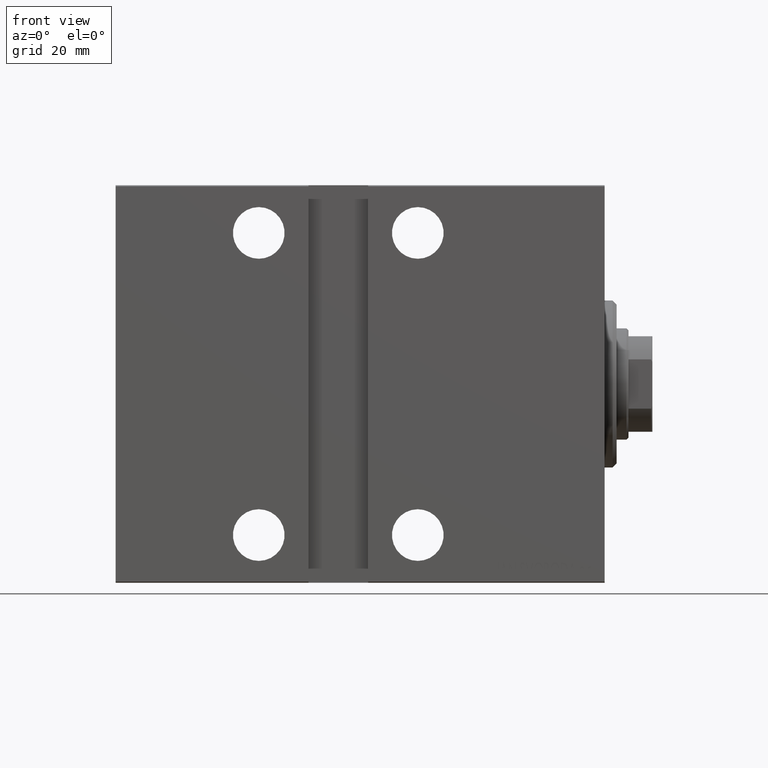
[diagram: clean part render]
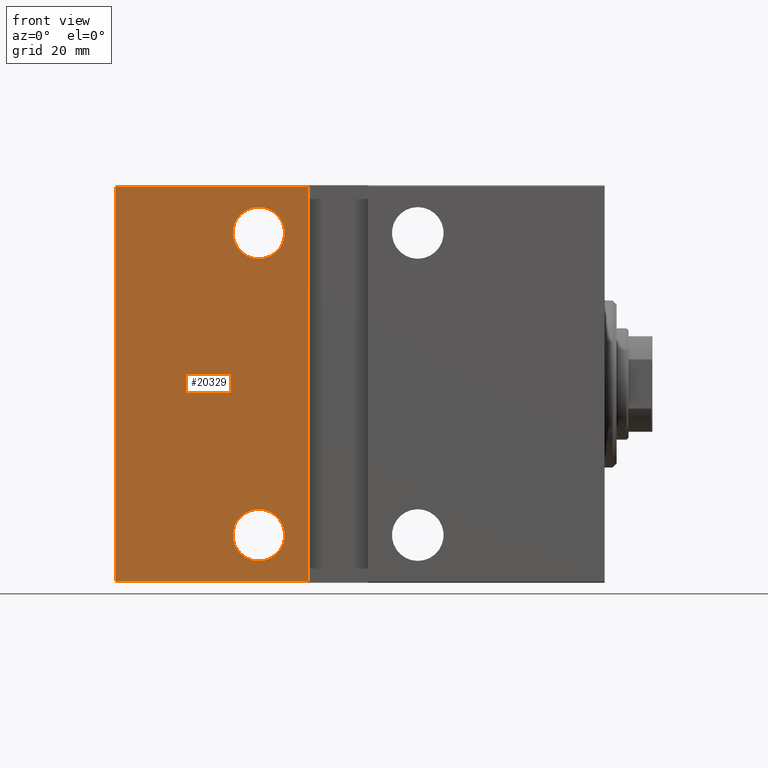
[diagram: same view with one face highlighted and labeled with its STEP entity id]
A machine part, front view. The second image highlights one B-rep face of the part: STEP entity #20329.
In plain terms, the highlighted planar face has unit normal (-0, 1, -0).
Its self-contained STEP definition (entity closure, byte-faithful):
#672 = CARTESIAN_POINT ( 'NONE',  ( 74.50000000000004263, 37.49999999999999289, 49.70000000000000284 ) ) ;
#1148 = CARTESIAN_POINT ( 'NONE',  ( 87.00000000000002842, 37.50000000000000711, -38.00000000000000000 ) ) ;
#1331 = CARTESIAN_POINT ( 'NONE',  ( 123.0000000000000000, 37.50000000000000711, -49.70000000000003126 ) ) ;
#1498 = VECTOR ( 'NONE', #22782, 1000.000000000000000 ) ;
#4213 = FACE_BOUND ( 'NONE', #6906, .T. ) ;
#4656 = VECTOR ( 'NONE', #32497, 1000.000000000000000 ) ;
#5637 = VERTEX_POINT ( 'NONE', #19834 ) ;
#6501 = CARTESIAN_POINT ( 'NONE',  ( 87.00000000000002842, 37.50000000000000711, -31.50000000000000000 ) ) ;
#6906 = EDGE_LOOP ( 'NONE', ( #12523, #16052 ) ) ;
#7429 = AXIS2_PLACEMENT_3D ( 'NONE', #10724, #7453, #20767 ) ;
#7453 = DIRECTION ( 'NONE',  ( 0.000000000000000000, -1.000000000000000000, -1.387778780781445182E-16 ) ) ;
#8120 = CARTESIAN_POINT ( 'NONE',  ( 123.0000000000000000, 37.50000000000000711, -50.00000000000000711 ) ) ;
#9083 = ORIENTED_EDGE ( 'NONE', *, *, #15493, .F. ) ;
#9143 = DIRECTION ( 'NONE',  ( 0.000000000000000000, 0.000000000000000000, -1.000000000000000000 ) ) ;
#9447 = CARTESIAN_POINT ( 'NONE',  ( 74.50000000000001421, 37.50000000000000711, -49.99999999999991473 ) ) ;
#9802 = EDGE_CURVE ( 'NONE', #28279, #41254, #20183, .T. ) ;
#10096 = EDGE_CURVE ( 'NONE', #34021, #16382, #38353, .T. ) ;
#10724 = CARTESIAN_POINT ( 'NONE',  ( 87.00000000000001421, 37.49999999999999289, 38.00000000000000000 ) ) ;
#11597 = CIRCLE ( 'NONE', #7429, 6.499999999999999112 ) ;
#12523 = ORIENTED_EDGE ( 'NONE', *, *, #9802, .T. ) ;
#13030 = CARTESIAN_POINT ( 'NONE',  ( 123.0000000000000000, 37.49999999999999289, 49.70000000000003126 ) ) ;
#14829 = VECTOR ( 'NONE', #26544, 1000.000000000000000 ) ;
#15493 = EDGE_CURVE ( 'NONE', #32814, #5637, #29126, .T. ) ;
#16052 = ORIENTED_EDGE ( 'NONE', *, *, #39480, .T. ) ;
#16382 = VERTEX_POINT ( 'NONE', #41572 ) ;
#17510 = DIRECTION ( 'NONE',  ( 0.000000000000000000, -1.000000000000000000, -1.387778780781445182E-16 ) ) ;
#17724 = DIRECTION ( 'NONE',  ( -1.000000000000000000, 0.000000000000000000, 0.000000000000000000 ) ) ;
#18382 = PLANE ( 'NONE',  #28015 ) ;
#18761 = ORIENTED_EDGE ( 'NONE', *, *, #22392, .T. ) ;
#18785 = AXIS2_PLACEMENT_3D ( 'NONE', #36517, #22755, #36731 ) ;
#19581 = LINE ( 'NONE', #29006, #4656 ) ;
#19834 = CARTESIAN_POINT ( 'NONE',  ( 74.50000000000001421, 37.50000000000000711, -49.70000000000003126 ) ) ;
#19926 = ORIENTED_EDGE ( 'NONE', *, *, #24994, .T. ) ;
#20183 = CIRCLE ( 'NONE', #18785, 6.499999999999999112 ) ;
#20329 = ADVANCED_FACE ( 'NONE', ( #31503, #4213, #27789 ), #18382, .F. ) ;
#20767 = DIRECTION ( 'NONE',  ( 0.000000000000000000, 0.000000000000000000, -1.000000000000000000 ) ) ;
#21148 = CIRCLE ( 'NONE', #41398, 6.499999999999999112 ) ;
#21465 = DIRECTION ( 'NONE',  ( 0.000000000000000000, -1.000000000000000000, -1.387778780781445182E-16 ) ) ;
#21887 = LINE ( 'NONE', #1331, #42771 ) ;
#22349 = ORIENTED_EDGE ( 'NONE', *, *, #40149, .F. ) ;
#22392 = EDGE_CURVE ( 'NONE', #42186, #5637, #21887, .T. ) ;
#22755 = DIRECTION ( 'NONE',  ( 0.000000000000000000, -1.000000000000000000, -1.387778780781445182E-16 ) ) ;
#22782 = DIRECTION ( 'NONE',  ( -2.775557561562893816E-16, 1.387778780781446908E-16, -1.000000000000000000 ) ) ;
#23033 = CARTESIAN_POINT ( 'NONE',  ( 87.00000000000001421, 37.49999999999999289, 44.50000000000000000 ) ) ;
#23534 = DIRECTION ( 'NONE',  ( 0.000000000000000000, 0.000000000000000000, -1.000000000000000000 ) ) ;
#24203 = EDGE_LOOP ( 'NONE', ( #39579, #19926 ) ) ;
#24658 = VERTEX_POINT ( 'NONE', #13030 ) ;
#24994 = EDGE_CURVE ( 'NONE', #16382, #34021, #21148, .T. ) ;
#26544 = DIRECTION ( 'NONE',  ( 0.000000000000000000, -1.387778780781445182E-16, 1.000000000000000000 ) ) ;
#27789 = FACE_OUTER_BOUND ( 'NONE', #31418, .T. ) ;
#27889 = AXIS2_PLACEMENT_3D ( 'NONE', #39101, #36034, #9143 ) ;
#28015 = AXIS2_PLACEMENT_3D ( 'NONE', #8120, #17510, #41145 ) ;
#28279 = VERTEX_POINT ( 'NONE', #23033 ) ;
#29006 = CARTESIAN_POINT ( 'NONE',  ( 123.0000000000000000, 37.49999999999999289, 49.70000000000003126 ) ) ;
#29126 = LINE ( 'NONE', #9447, #1498 ) ;
#31418 = EDGE_LOOP ( 'NONE', ( #22349, #18761, #9083, #34704 ) ) ;
#31503 = FACE_BOUND ( 'NONE', #24203, .T. ) ;
#32497 = DIRECTION ( 'NONE',  ( 1.000000000000000000, 0.000000000000000000, 0.000000000000000000 ) ) ;
#32814 = VERTEX_POINT ( 'NONE', #672 ) ;
#33678 = CARTESIAN_POINT ( 'NONE',  ( 123.0000000000000000, 37.50000000000000711, -49.70000000000003126 ) ) ;
#34021 = VERTEX_POINT ( 'NONE', #6501 ) ;
#34704 = ORIENTED_EDGE ( 'NONE', *, *, #39010, .T. ) ;
#36034 = DIRECTION ( 'NONE',  ( 0.000000000000000000, -1.000000000000000000, -1.387778780781445182E-16 ) ) ;
#36517 = CARTESIAN_POINT ( 'NONE',  ( 87.00000000000001421, 37.49999999999999289, 38.00000000000000000 ) ) ;
#36731 = DIRECTION ( 'NONE',  ( 0.000000000000000000, 0.000000000000000000, -1.000000000000000000 ) ) ;
#37572 = CARTESIAN_POINT ( 'NONE',  ( 87.00000000000001421, 37.49999999999999289, 31.50000000000000000 ) ) ;
#38353 = CIRCLE ( 'NONE', #27889, 6.499999999999999112 ) ;
#38586 = LINE ( 'NONE', #43164, #14829 ) ;
#39010 = EDGE_CURVE ( 'NONE', #32814, #24658, #19581, .T. ) ;
#39101 = CARTESIAN_POINT ( 'NONE',  ( 87.00000000000002842, 37.50000000000000711, -38.00000000000000000 ) ) ;
#39480 = EDGE_CURVE ( 'NONE', #41254, #28279, #11597, .T. ) ;
#39579 = ORIENTED_EDGE ( 'NONE', *, *, #10096, .T. ) ;
#40149 = EDGE_CURVE ( 'NONE', #42186, #24658, #38586, .T. ) ;
#41145 = DIRECTION ( 'NONE',  ( 0.000000000000000000, 1.387778780781445182E-16, -1.000000000000000000 ) ) ;
#41254 = VERTEX_POINT ( 'NONE', #37572 ) ;
#41398 = AXIS2_PLACEMENT_3D ( 'NONE', #1148, #21465, #23534 ) ;
#41572 = CARTESIAN_POINT ( 'NONE',  ( 87.00000000000002842, 37.50000000000000711, -44.50000000000000000 ) ) ;
#42186 = VERTEX_POINT ( 'NONE', #33678 ) ;
#42771 = VECTOR ( 'NONE', #17724, 1000.000000000000000 ) ;
#43164 = CARTESIAN_POINT ( 'NONE',  ( 123.0000000000000000, 37.50000000000000711, -50.00000000000000711 ) ) ;